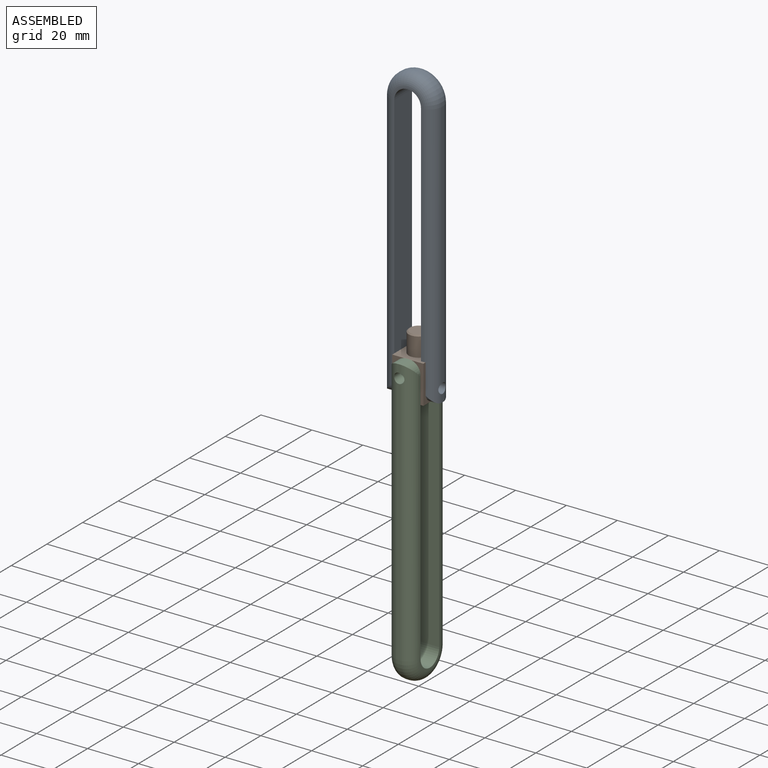
[diagram: assembled view]
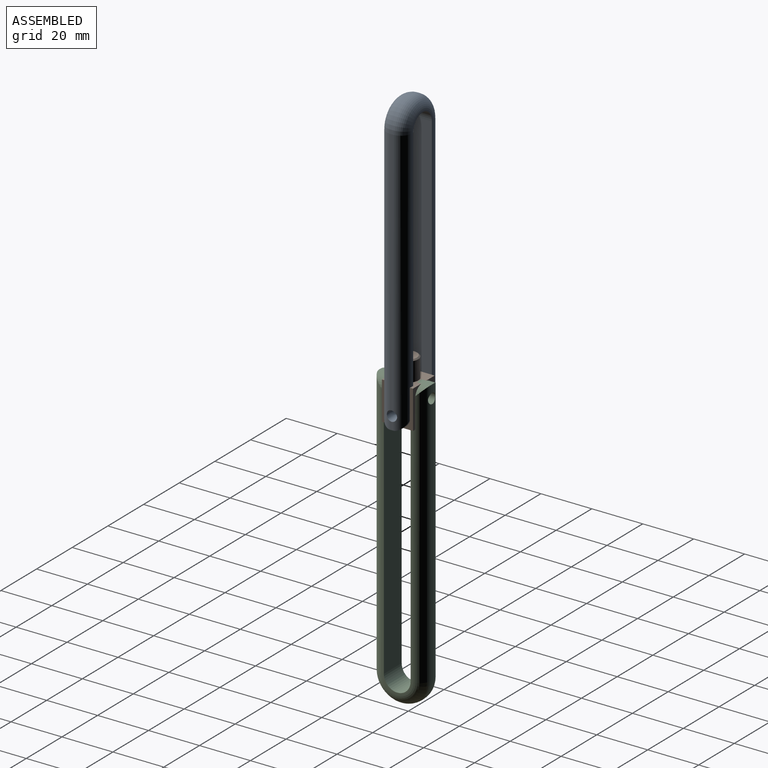
[diagram: assembled view, second angle]
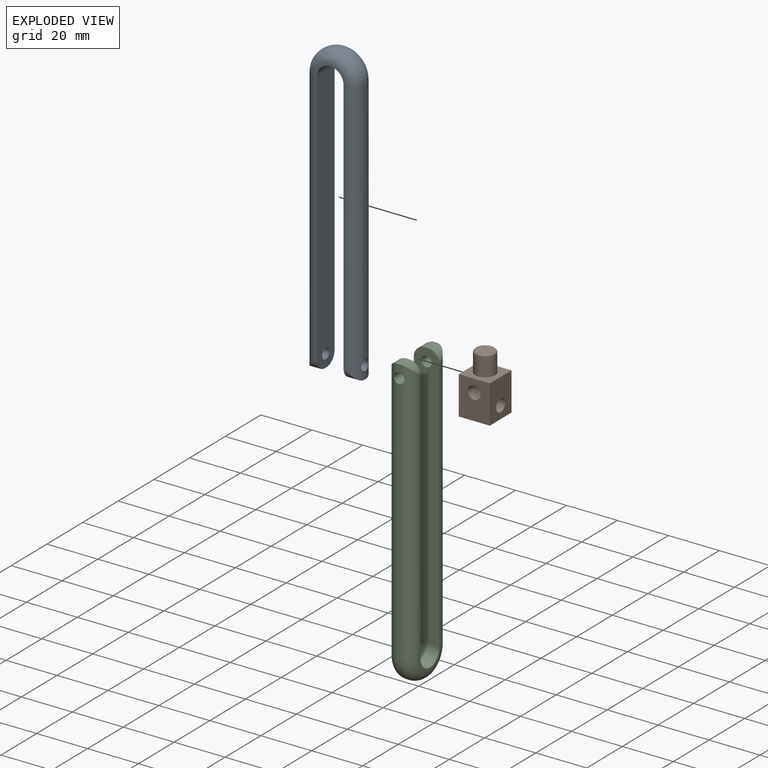
[diagram: exploded view]
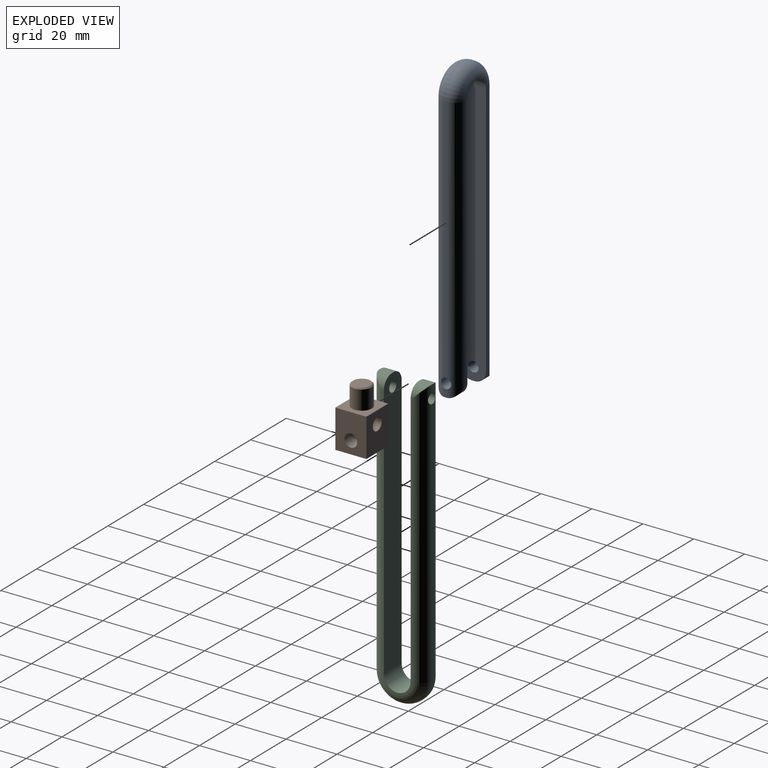
[diagram: exploded view, second angle]
ASSEMBLY  parts=3 mates=2
PART A: 24 faces, bbox 22.2x116.1x10 mm
  f0: plane 98.06x1mm, normal (1,0,0), area 98mm2, adj f5,f12,f15,f20
  f1: plane 3.06x1mm, normal (-1,0,0), area 3mm2, adj f3,f13,f18,f23
  f2: plane 105x10mm, normal (1,0,0), area 1028.7mm2, adj f3,f9,f10,f11,f13,f16,f21
  f3: plane 5x1mm, normal (0,1,0), area 5mm2, adj f1,f2,f16,f21
  f4: plane 98.06x1mm, normal (-1,0,0), area 98mm2, adj f5,f13,f18,f23
  f5: cylinder r=10.25mm len=20.5mm, axis (0,0,-1), area 32.2mm2, adj f0,f4,f17,f22
  f6: plane 3.06x1mm, normal (1,0,0), area 3mm2, adj f7,f12,f15,f20
  f7: plane 5x1mm, normal (0,1,0), area 5mm2, adj f6,f8,f14,f19
  f8: plane 105x10mm, normal (-1,0,0), area 1028.7mm2, adj f7,f9,f10,f11,f12,f14,f19
  f9: cylinder r=5.25mm len=10.5mm, axis (0,0,-1), area 164.9mm2, adj f2,f8,f10,f11
  f10: plane 106.25x11.5mm, normal (0,0,1), area 109.1mm2, adj f2,f8,f9,f19,f20,f21,f22,f23
  f11: plane 106.25x11.5mm, normal (0,0,-1), area 109.1mm2, adj f2,f8,f9,f14,f15,f16,f17,f18
  f12: cylinder r=2mm len=5mm, axis (1,0,0), area 61.5mm2, adj f0,f6,f8,f15,f20
  f13: cylinder r=2mm len=5mm, axis (1,0,0), area 61.5mm2, adj f1,f2,f4,f18,f23
  f14: cylinder r=4.5mm len=5mm, axis (-1,0,0), area 23.8mm2, adj f7,f8,f11,f15
  f15: cylinder r=4.5mm len=105mm, axis (0,1,0), area 726.3mm2, adj f0,f6,f11,f12,f14,f17
  f16: cylinder r=4.5mm len=5mm, axis (-1,0,0), area 23.8mm2, adj f2,f3,f11,f18
  f17: torus R=5.75mm, axis (0,0,1), area 191.3mm2, adj f5,f11,f15,f18
  f18: cylinder r=4.5mm len=105mm, axis (0,-1,0), area 726.3mm2, adj f1,f4,f11,f13,f16,f17
  f19: cylinder r=4.5mm len=5mm, axis (1,0,0), area 23.8mm2, adj f7,f8,f10,f20
  f20: cylinder r=4.5mm len=105mm, axis (0,-1,0), area 726.3mm2, adj f0,f6,f10,f12,f19,f22
  f21: cylinder r=4.5mm len=5mm, axis (1,0,0), area 23.8mm2, adj f2,f3,f10,f23
  f22: torus R=5.75mm, axis (0,0,1), area 191.3mm2, adj f5,f10,f20,f23
  f23: cylinder r=4.5mm len=105mm, axis (0,1,0), area 726.3mm2, adj f1,f4,f10,f13,f21,f22
PART B: 11 faces, bbox 12.2x12.2x23 mm
  f0: plane 12.2x12.2mm, normal (0,0,1), area 101.1mm2, adj f1,f4,f5,f6,f8
  f1: plane 15x12.2mm, normal (-1,0,0), area 163.4mm2, adj f0,f2,f5,f6,f7
  f2: plane 12.2x12.2mm, normal (0,0,-1), area 148.8mm2, adj f1,f4,f5,f6
  f3: cylinder r=2.5mm len=12.2mm, axis (0,1,0), area 191.6mm2, adj f5,f6
  f4: plane 15x12.2mm, normal (1,0,0), area 163.4mm2, adj f0,f2,f5,f6,f7
  f5: plane 15x12.2mm, normal (0,-1,0), area 163.4mm2, adj f0,f1,f2,f3,f4
  f6: plane 15x12.2mm, normal (0,1,0), area 163.4mm2, adj f0,f1,f2,f3,f4
  f7: cylinder r=2.5mm len=12.2mm, axis (1,0,0), area 191.6mm2, adj f1,f4
  f8: cylinder r=3.9mm len=7.8mm, axis (0,0,-1), area 183.8mm2, adj f0,f10
  f9: plane 6.8x6.8mm, normal (0,0,1), area 36.3mm2, adj f10
  f10: cone r=3.4mm half-angle=45deg, axis (0,0,-1), area 16.2mm2, adj f8,f9
PART C: same geometry as A
PLACE A rot(axis=(0,-0.71,0.71),180deg) t=(-0.85,0,-10.1)mm
PLACE B t=(0,0,-7.5)mm
PLACE C rot(axis=(0.58,0.58,0.58),120deg) t=(0,-0.85,-4.9)mm
MATE fastened A.f12 <-> B.f7  axis (-1,0,0) through (-6.1,0,-10.1)mm
MATE fastened C.f12 <-> B.f3  axis (0,1,0) through (0,-6.1,-4.9)mm
